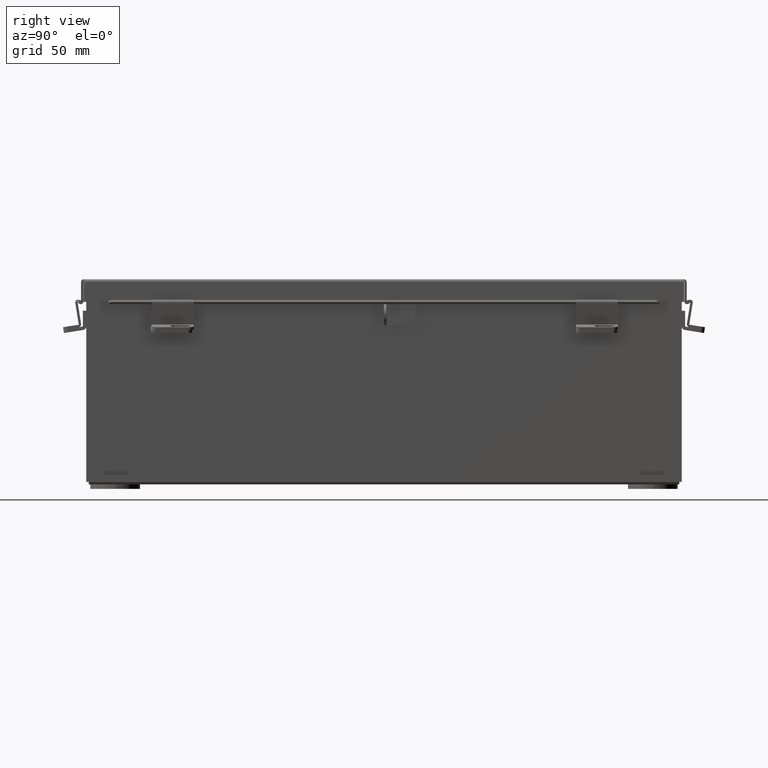
[diagram: clean part render]
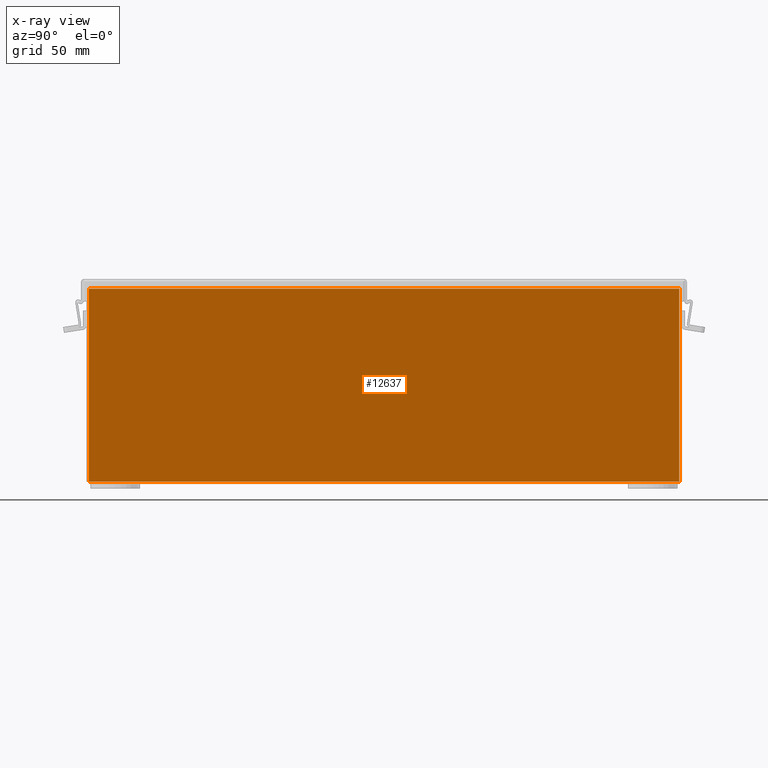
[diagram: x-ray — body ghosted, one internal face saturated and labeled with its STEP entity id]
A machine part, right view, then the same camera in x-ray: the body is ghosted and one INTERNAL B-rep face — a face not visible from any outside direction — is saturated and labeled: STEP entity #12637.
In plain terms, the highlighted planar face has unit normal (-1, 0, 0).
Its self-contained STEP definition (entity closure, byte-faithful):
#342 = CARTESIAN_POINT ( 'NONE',  ( 2.925300000000001800, -8.925300000000001800, 0.0000000000000000000 ) ) ;
#677 = VECTOR ( 'NONE', #18827, 39.37007874015748100 ) ;
#862 = ORIENTED_EDGE ( 'NONE', *, *, #11385, .F. ) ;
#1140 = PLANE ( 'NONE',  #2723 ) ;
#1552 = EDGE_CURVE ( 'NONE', #3179, #13920, #9956, .T. ) ;
#1818 = DIRECTION ( 'NONE',  ( -3.455316574900959400E-015, -0.0000000000000000000, -1.000000000000000000 ) ) ;
#1888 = CARTESIAN_POINT ( 'NONE',  ( 2.925300000000021800, 8.925299999999998200, 5.837600000000000100 ) ) ;
#1903 = LINE ( 'NONE', #3110, #2338 ) ;
#2338 = VECTOR ( 'NONE', #14917, 39.37007874015748100 ) ;
#2443 = VECTOR ( 'NONE', #16980, 39.37007874015748100 ) ;
#2617 = DIRECTION ( 'NONE',  ( -1.000000000000000000, 0.0000000000000000000, 3.455316574900958600E-015 ) ) ;
#2723 = AXIS2_PLACEMENT_3D ( 'NONE', #9896, #2617, #12880 ) ;
#3110 = CARTESIAN_POINT ( 'NONE',  ( 2.925300000000021800, 8.925299999999998200, 5.850600000000000000 ) ) ;
#3179 = VERTEX_POINT ( 'NONE', #6020 ) ;
#4268 = CARTESIAN_POINT ( 'NONE',  ( 2.925300000000001800, -8.925300000000001800, 0.01300000000000011600 ) ) ;
#4844 = VERTEX_POINT ( 'NONE', #15733 ) ;
#5007 = ORIENTED_EDGE ( 'NONE', *, *, #6305, .F. ) ;
#5279 = ORIENTED_EDGE ( 'NONE', *, *, #16775, .F. ) ;
#5886 = LINE ( 'NONE', #8180, #2443 ) ;
#6020 = CARTESIAN_POINT ( 'NONE',  ( 2.925300000000021800, -8.925299999999998200, 5.837600000000000100 ) ) ;
#6305 = EDGE_CURVE ( 'NONE', #4844, #6371, #1903, .T. ) ;
#6371 = VERTEX_POINT ( 'NONE', #1888 ) ;
#8180 = CARTESIAN_POINT ( 'NONE',  ( 2.925300000000001800, -8.925300000000001800, 0.01300000000000011600 ) ) ;
#8445 = LINE ( 'NONE', #11218, #677 ) ;
#9485 = VECTOR ( 'NONE', #1818, 39.37007874015748100 ) ;
#9896 = CARTESIAN_POINT ( 'NONE',  ( 2.925300000000001800, 0.0000000000000000000, -1.036394832596379800E-014 ) ) ;
#9956 = LINE ( 'NONE', #342, #9485 ) ;
#11218 = CARTESIAN_POINT ( 'NONE',  ( 2.925300000000021800, 8.925299999999996500, 5.837600000000000100 ) ) ;
#11385 = EDGE_CURVE ( 'NONE', #13920, #4844, #5886, .T. ) ;
#12637 = ADVANCED_FACE ( 'NONE', ( #16396 ), #1140, .T. ) ;
#12880 = DIRECTION ( 'NONE',  ( 3.455316574900958600E-015, 0.0000000000000000000, 1.000000000000000000 ) ) ;
#13495 = ORIENTED_EDGE ( 'NONE', *, *, #1552, .F. ) ;
#13920 = VERTEX_POINT ( 'NONE', #4268 ) ;
#14917 = DIRECTION ( 'NONE',  ( 3.455316574900959400E-015, -1.867738689135653700E-016, 1.000000000000000000 ) ) ;
#15733 = CARTESIAN_POINT ( 'NONE',  ( 2.925300000000001800, 8.925299999999998200, 0.01300000000000011600 ) ) ;
#16396 = FACE_OUTER_BOUND ( 'NONE', #17825, .T. ) ;
#16775 = EDGE_CURVE ( 'NONE', #6371, #3179, #8445, .T. ) ;
#16980 = DIRECTION ( 'NONE',  ( 0.0000000000000000000, 1.000000000000000000, 0.0000000000000000000 ) ) ;
#17825 = EDGE_LOOP ( 'NONE', ( #13495, #5279, #5007, #862 ) ) ;
#18827 = DIRECTION ( 'NONE',  ( -0.0000000000000000000, -1.000000000000000000, -0.0000000000000000000 ) ) ;